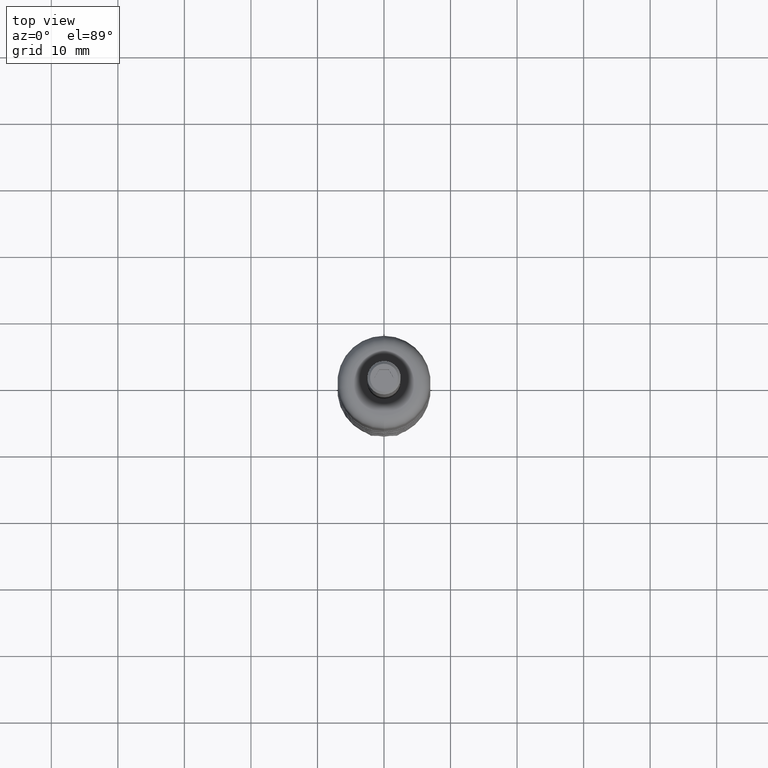
[diagram: clean part render]
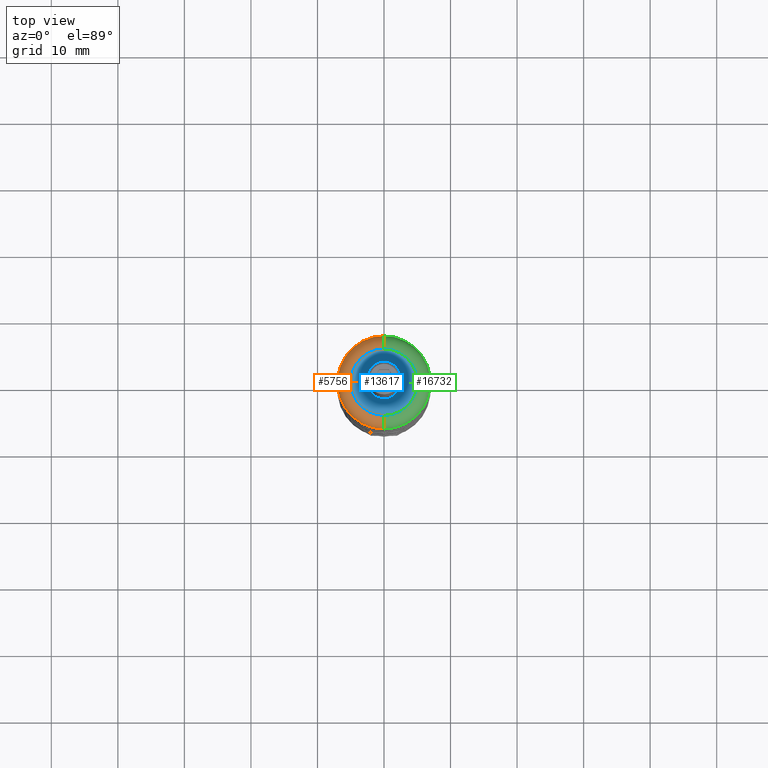
[diagram: same view with three faces highlighted in distinct colors, each labeled with its STEP entity id]
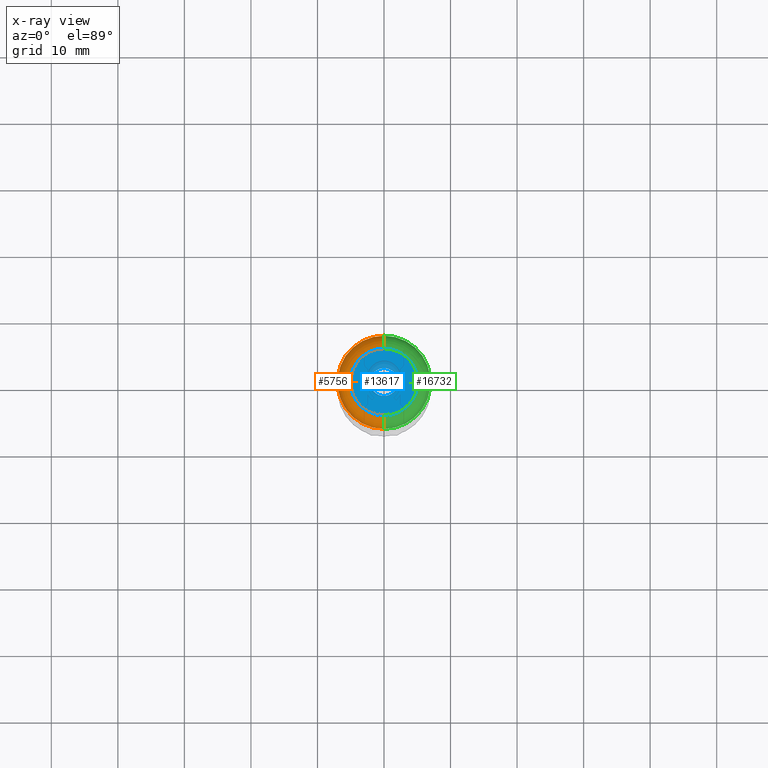
[diagram: x-ray of the same camera — body ghosted, the three highlighted faces saturated]
A machine part, top view with three faces highlighted in distinct colors.
The next image is the same camera in x-ray (body ghosted, the three faces saturated) — at least one of them is partly hidden behind the body in this view.
Their STEP definitions:

[orange] entity #5756 — the highlighted toroidal blend (fillet) surface has major radius 5 mm and minor (blend) radius 2 mm.
#108 = DIRECTION ( 'NONE',  ( 0.0000000000000000000, -5.987083850887820200E-017, -1.000000000000000000 ) ) ;
#160 = DIRECTION ( 'NONE',  ( -0.0000000000000000000, 5.987083850887820200E-017, 1.000000000000000000 ) ) ;
#212 = CARTESIAN_POINT ( 'NONE',  ( 8.572527594031463300E-016, 6.999999999999991100, 33.00000000000000000 ) ) ;
#461 = VERTEX_POINT ( 'NONE', #14332 ) ;
#1454 = DIRECTION ( 'NONE',  ( -1.224646799147353200E-016, 1.000000000000000000, 0.0000000000000000000 ) ) ;
#2087 = DIRECTION ( 'NONE',  ( 0.0000000000000000000, 0.0000000000000000000, 1.000000000000000000 ) ) ;
#2354 = AXIS2_PLACEMENT_3D ( 'NONE', #13411, #9405, #2963 ) ;
#2577 = AXIS2_PLACEMENT_3D ( 'NONE', #6559, #15693, #1454 ) ;
#2963 = DIRECTION ( 'NONE',  ( 0.0000000000000000000, 1.000000000000000000, -5.987083850887820200E-017 ) ) ;
#3235 = EDGE_LOOP ( 'NONE', ( #14419, #7446, #10162, #6499 ) ) ;
#3344 = EDGE_CURVE ( 'NONE', #10818, #461, #14090, .T. ) ;
#3455 = DIRECTION ( 'NONE',  ( -1.000000000000000000, 0.0000000000000000000, -0.0000000000000000000 ) ) ;
#3642 = CARTESIAN_POINT ( 'NONE',  ( 0.0000000000000000000, 4.999999999999990200, 35.00000000000000000 ) ) ;
#5646 = AXIS2_PLACEMENT_3D ( 'NONE', #7853, #108, #9180 ) ;
#5756 = ADVANCED_FACE ( 'NONE', ( #10214 ), #12854, .T. ) ;
#6091 = EDGE_CURVE ( 'NONE', #461, #13933, #10815, .T. ) ;
#6499 = ORIENTED_EDGE ( 'NONE', *, *, #16845, .F. ) ;
#6559 = CARTESIAN_POINT ( 'NONE',  ( 6.123233995736754400E-016, -4.999999999999990200, 33.00000000000000000 ) ) ;
#6622 = CARTESIAN_POINT ( 'NONE',  ( 0.0000000000000000000, -3.370377402677662700E-031, 35.00000000000000000 ) ) ;
#7446 = ORIENTED_EDGE ( 'NONE', *, *, #3344, .F. ) ;
#7575 = CARTESIAN_POINT ( 'NONE',  ( 0.0000000000000000000, -6.999999999999990200, 33.00000000000000000 ) ) ;
#7853 = CARTESIAN_POINT ( 'NONE',  ( 0.0000000000000000000, -1.197416770177569200E-016, 33.00000000000000000 ) ) ;
#9180 = DIRECTION ( 'NONE',  ( 0.0000000000000000000, 1.000000000000000000, 0.0000000000000000000 ) ) ;
#9405 = DIRECTION ( 'NONE',  ( 0.0000000000000000000, -5.987083850887820200E-017, -1.000000000000000000 ) ) ;
#9693 = VERTEX_POINT ( 'NONE', #212 ) ;
#9887 = AXIS2_PLACEMENT_3D ( 'NONE', #16505, #3455, #2087 ) ;
#10162 = ORIENTED_EDGE ( 'NONE', *, *, #14194, .T. ) ;
#10214 = FACE_OUTER_BOUND ( 'NONE', #3235, .T. ) ;
#10815 = CIRCLE ( 'NONE', #2577, 2.000000000000000000 ) ;
#10818 = VERTEX_POINT ( 'NONE', #3642 ) ;
#11887 = CIRCLE ( 'NONE', #9887, 2.000000000000001800 ) ;
#12854 = TOROIDAL_SURFACE ( 'NONE', #2354, 4.999999999999990200, 2.000000000000000000 ) ;
#13411 = CARTESIAN_POINT ( 'NONE',  ( 0.0000000000000000000, -1.197416770177568700E-016, 33.00000000000000000 ) ) ;
#13933 = VERTEX_POINT ( 'NONE', #7575 ) ;
#14090 = CIRCLE ( 'NONE', #14222, 4.999999999999990200 ) ;
#14194 = EDGE_CURVE ( 'NONE', #10818, #9693, #11887, .T. ) ;
#14222 = AXIS2_PLACEMENT_3D ( 'NONE', #6622, #160, #15650 ) ;
#14332 = CARTESIAN_POINT ( 'NONE',  ( 7.347880794884107900E-016, -4.999999999999990200, 35.00000000000000000 ) ) ;
#14419 = ORIENTED_EDGE ( 'NONE', *, *, #6091, .F. ) ;
#15650 = DIRECTION ( 'NONE',  ( 0.0000000000000000000, 1.000000000000000000, 0.0000000000000000000 ) ) ;
#15693 = DIRECTION ( 'NONE',  ( 1.000000000000000000, 1.224646799147353200E-016, -7.332063074216577800E-033 ) ) ;
#16505 = CARTESIAN_POINT ( 'NONE',  ( 0.0000000000000000000, 4.999999999999990200, 33.00000000000000000 ) ) ;
#16550 = CIRCLE ( 'NONE', #5646, 6.999999999999990200 ) ;
#16845 = EDGE_CURVE ( 'NONE', #13933, #9693, #16550, .T. ) ;

[blue] entity #13617 — the highlighted planar face has unit normal (0, -0, -1).
#51 = DIRECTION ( 'NONE',  ( 0.0000000000000000000, -5.987083850887820200E-017, -1.000000000000000000 ) ) ;
#160 = DIRECTION ( 'NONE',  ( -0.0000000000000000000, 5.987083850887820200E-017, 1.000000000000000000 ) ) ;
#388 = CARTESIAN_POINT ( 'NONE',  ( 0.0000000000000000000, -3.370377402677662700E-031, 35.00000000000000000 ) ) ;
#461 = VERTEX_POINT ( 'NONE', #14332 ) ;
#606 = EDGE_LOOP ( 'NONE', ( #15224, #13169 ) ) ;
#1606 = CIRCLE ( 'NONE', #3441, 2.099999999999997900 ) ;
#2335 = FACE_BOUND ( 'NONE', #8989, .T. ) ;
#3344 = EDGE_CURVE ( 'NONE', #10818, #461, #14090, .T. ) ;
#3441 = AXIS2_PLACEMENT_3D ( 'NONE', #6520, #13082, #9248 ) ;
#3642 = CARTESIAN_POINT ( 'NONE',  ( 0.0000000000000000000, 4.999999999999990200, 35.00000000000000000 ) ) ;
#4310 = DIRECTION ( 'NONE',  ( 0.0000000000000000000, 1.000000000000000000, 0.0000000000000000000 ) ) ;
#4584 = CARTESIAN_POINT ( 'NONE',  ( 2.099999999999997900, 3.932449546531767800E-015, 35.00000000000000000 ) ) ;
#4841 = EDGE_CURVE ( 'NONE', #8632, #11685, #5933, .T. ) ;
#5933 = CIRCLE ( 'NONE', #12046, 2.099999999999997900 ) ;
#6407 = DIRECTION ( 'NONE',  ( 0.0000000000000000000, 1.000000000000000000, -5.987083850887820200E-017 ) ) ;
#6482 = DIRECTION ( 'NONE',  ( -0.0000000000000000000, -0.0000000000000000000, 1.000000000000000000 ) ) ;
#6520 = CARTESIAN_POINT ( 'NONE',  ( 0.0000000000000000000, 3.932449546531767800E-015, 35.00000000000000000 ) ) ;
#6591 = AXIS2_PLACEMENT_3D ( 'NONE', #388, #7910, #4310 ) ;
#6622 = CARTESIAN_POINT ( 'NONE',  ( 0.0000000000000000000, -3.370377402677662700E-031, 35.00000000000000000 ) ) ;
#7701 = PLANE ( 'NONE',  #13162 ) ;
#7910 = DIRECTION ( 'NONE',  ( -0.0000000000000000000, 5.987083850887820200E-017, 1.000000000000000000 ) ) ;
#8048 = EDGE_CURVE ( 'NONE', #461, #10818, #11388, .T. ) ;
#8632 = VERTEX_POINT ( 'NONE', #4584 ) ;
#8989 = EDGE_LOOP ( 'NONE', ( #14278, #13920 ) ) ;
#9248 = DIRECTION ( 'NONE',  ( 1.000000000000000000, 0.0000000000000000000, 0.0000000000000000000 ) ) ;
#10115 = EDGE_CURVE ( 'NONE', #11685, #8632, #1606, .T. ) ;
#10818 = VERTEX_POINT ( 'NONE', #3642 ) ;
#11388 = CIRCLE ( 'NONE', #6591, 4.999999999999990200 ) ;
#11500 = FACE_OUTER_BOUND ( 'NONE', #606, .T. ) ;
#11685 = VERTEX_POINT ( 'NONE', #13676 ) ;
#11718 = CARTESIAN_POINT ( 'NONE',  ( 0.0000000000000000000, 7.000000000000000900, 35.00000000000000000 ) ) ;
#12046 = AXIS2_PLACEMENT_3D ( 'NONE', #12883, #6482, #15630 ) ;
#12883 = CARTESIAN_POINT ( 'NONE',  ( 0.0000000000000000000, 3.932449546531767800E-015, 35.00000000000000000 ) ) ;
#13082 = DIRECTION ( 'NONE',  ( -0.0000000000000000000, -0.0000000000000000000, 1.000000000000000000 ) ) ;
#13162 = AXIS2_PLACEMENT_3D ( 'NONE', #11718, #51, #6407 ) ;
#13169 = ORIENTED_EDGE ( 'NONE', *, *, #8048, .T. ) ;
#13617 = ADVANCED_FACE ( 'NONE', ( #2335, #11500 ), #7701, .F. ) ;
#13676 = CARTESIAN_POINT ( 'NONE',  ( -2.099999999999997900, 4.189625374352711500E-015, 35.00000000000000000 ) ) ;
#13920 = ORIENTED_EDGE ( 'NONE', *, *, #10115, .F. ) ;
#14090 = CIRCLE ( 'NONE', #14222, 4.999999999999990200 ) ;
#14222 = AXIS2_PLACEMENT_3D ( 'NONE', #6622, #160, #15650 ) ;
#14278 = ORIENTED_EDGE ( 'NONE', *, *, #4841, .F. ) ;
#14332 = CARTESIAN_POINT ( 'NONE',  ( 7.347880794884107900E-016, -4.999999999999990200, 35.00000000000000000 ) ) ;
#15224 = ORIENTED_EDGE ( 'NONE', *, *, #3344, .T. ) ;
#15630 = DIRECTION ( 'NONE',  ( 1.000000000000000000, 0.0000000000000000000, 0.0000000000000000000 ) ) ;
#15650 = DIRECTION ( 'NONE',  ( 0.0000000000000000000, 1.000000000000000000, 0.0000000000000000000 ) ) ;

[green] entity #16732 — the highlighted toroidal blend (fillet) surface has major radius 5 mm and minor (blend) radius 2 mm.
#212 = CARTESIAN_POINT ( 'NONE',  ( 8.572527594031463300E-016, 6.999999999999991100, 33.00000000000000000 ) ) ;
#388 = CARTESIAN_POINT ( 'NONE',  ( 0.0000000000000000000, -3.370377402677662700E-031, 35.00000000000000000 ) ) ;
#461 = VERTEX_POINT ( 'NONE', #14332 ) ;
#1024 = DIRECTION ( 'NONE',  ( 0.0000000000000000000, 1.000000000000000000, 0.0000000000000000000 ) ) ;
#1222 = ORIENTED_EDGE ( 'NONE', *, *, #14194, .F. ) ;
#1264 = TOROIDAL_SURFACE ( 'NONE', #3906, 4.999999999999990200, 2.000000000000000000 ) ;
#1454 = DIRECTION ( 'NONE',  ( -1.224646799147353200E-016, 1.000000000000000000, 0.0000000000000000000 ) ) ;
#1641 = EDGE_LOOP ( 'NONE', ( #3854, #4327, #12398, #1222 ) ) ;
#2087 = DIRECTION ( 'NONE',  ( 0.0000000000000000000, 0.0000000000000000000, 1.000000000000000000 ) ) ;
#2577 = AXIS2_PLACEMENT_3D ( 'NONE', #6559, #15693, #1454 ) ;
#3455 = DIRECTION ( 'NONE',  ( -1.000000000000000000, 0.0000000000000000000, -0.0000000000000000000 ) ) ;
#3642 = CARTESIAN_POINT ( 'NONE',  ( 0.0000000000000000000, 4.999999999999990200, 35.00000000000000000 ) ) ;
#3854 = ORIENTED_EDGE ( 'NONE', *, *, #8048, .F. ) ;
#3887 = FACE_OUTER_BOUND ( 'NONE', #1641, .T. ) ;
#3906 = AXIS2_PLACEMENT_3D ( 'NONE', #13993, #6448, #12904 ) ;
#4310 = DIRECTION ( 'NONE',  ( 0.0000000000000000000, 1.000000000000000000, 0.0000000000000000000 ) ) ;
#4327 = ORIENTED_EDGE ( 'NONE', *, *, #6091, .T. ) ;
#4414 = EDGE_CURVE ( 'NONE', #9693, #13933, #7344, .T. ) ;
#5012 = DIRECTION ( 'NONE',  ( 0.0000000000000000000, -5.987083850887820200E-017, -1.000000000000000000 ) ) ;
#6091 = EDGE_CURVE ( 'NONE', #461, #13933, #10815, .T. ) ;
#6448 = DIRECTION ( 'NONE',  ( 0.0000000000000000000, -5.987083850887820200E-017, -1.000000000000000000 ) ) ;
#6559 = CARTESIAN_POINT ( 'NONE',  ( 6.123233995736754400E-016, -4.999999999999990200, 33.00000000000000000 ) ) ;
#6591 = AXIS2_PLACEMENT_3D ( 'NONE', #388, #7910, #4310 ) ;
#7344 = CIRCLE ( 'NONE', #14432, 6.999999999999990200 ) ;
#7575 = CARTESIAN_POINT ( 'NONE',  ( 0.0000000000000000000, -6.999999999999990200, 33.00000000000000000 ) ) ;
#7910 = DIRECTION ( 'NONE',  ( -0.0000000000000000000, 5.987083850887820200E-017, 1.000000000000000000 ) ) ;
#8048 = EDGE_CURVE ( 'NONE', #461, #10818, #11388, .T. ) ;
#9693 = VERTEX_POINT ( 'NONE', #212 ) ;
#9887 = AXIS2_PLACEMENT_3D ( 'NONE', #16505, #3455, #2087 ) ;
#10815 = CIRCLE ( 'NONE', #2577, 2.000000000000000000 ) ;
#10818 = VERTEX_POINT ( 'NONE', #3642 ) ;
#11388 = CIRCLE ( 'NONE', #6591, 4.999999999999990200 ) ;
#11887 = CIRCLE ( 'NONE', #9887, 2.000000000000001800 ) ;
#12398 = ORIENTED_EDGE ( 'NONE', *, *, #4414, .F. ) ;
#12904 = DIRECTION ( 'NONE',  ( 0.0000000000000000000, 1.000000000000000000, -5.987083850887820200E-017 ) ) ;
#13933 = VERTEX_POINT ( 'NONE', #7575 ) ;
#13993 = CARTESIAN_POINT ( 'NONE',  ( 0.0000000000000000000, -1.197416770177568700E-016, 33.00000000000000000 ) ) ;
#14194 = EDGE_CURVE ( 'NONE', #10818, #9693, #11887, .T. ) ;
#14332 = CARTESIAN_POINT ( 'NONE',  ( 7.347880794884107900E-016, -4.999999999999990200, 35.00000000000000000 ) ) ;
#14432 = AXIS2_PLACEMENT_3D ( 'NONE', #16586, #5012, #1024 ) ;
#15693 = DIRECTION ( 'NONE',  ( 1.000000000000000000, 1.224646799147353200E-016, -7.332063074216577800E-033 ) ) ;
#16505 = CARTESIAN_POINT ( 'NONE',  ( 0.0000000000000000000, 4.999999999999990200, 33.00000000000000000 ) ) ;
#16586 = CARTESIAN_POINT ( 'NONE',  ( 0.0000000000000000000, -1.197416770177569200E-016, 33.00000000000000000 ) ) ;
#16732 = ADVANCED_FACE ( 'NONE', ( #3887 ), #1264, .T. ) ;